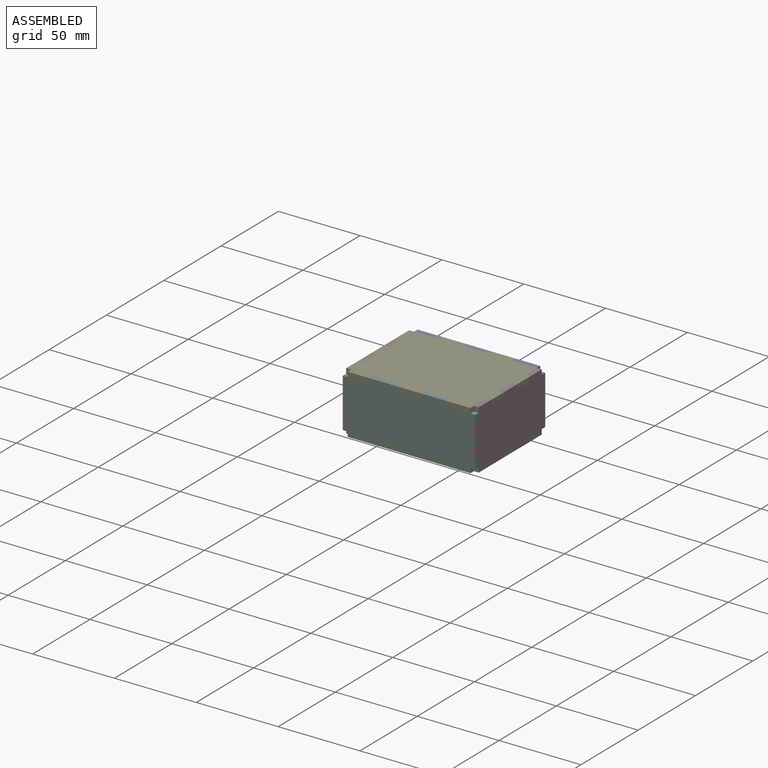
[diagram: assembled view]
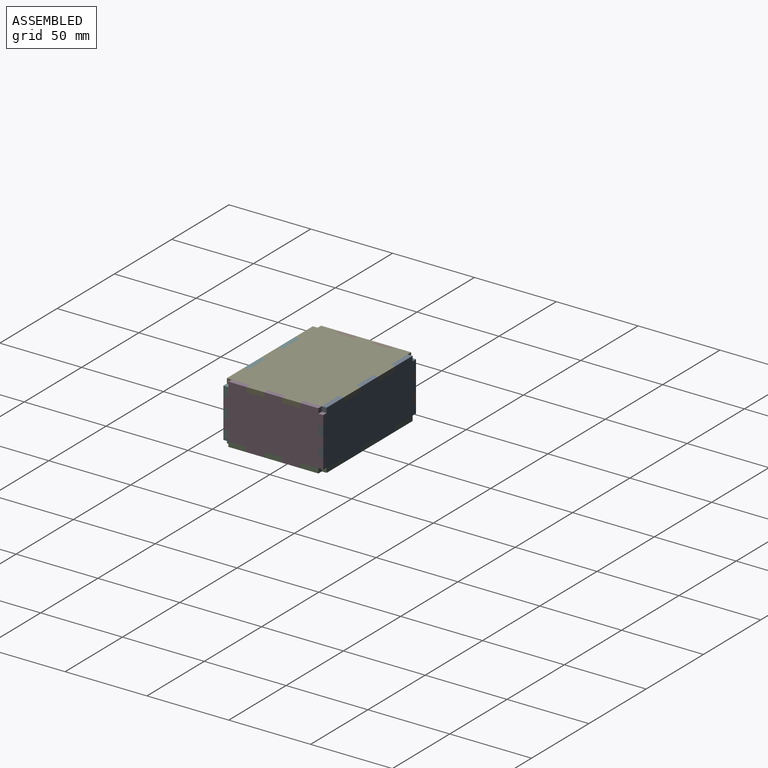
[diagram: assembled view, second angle]
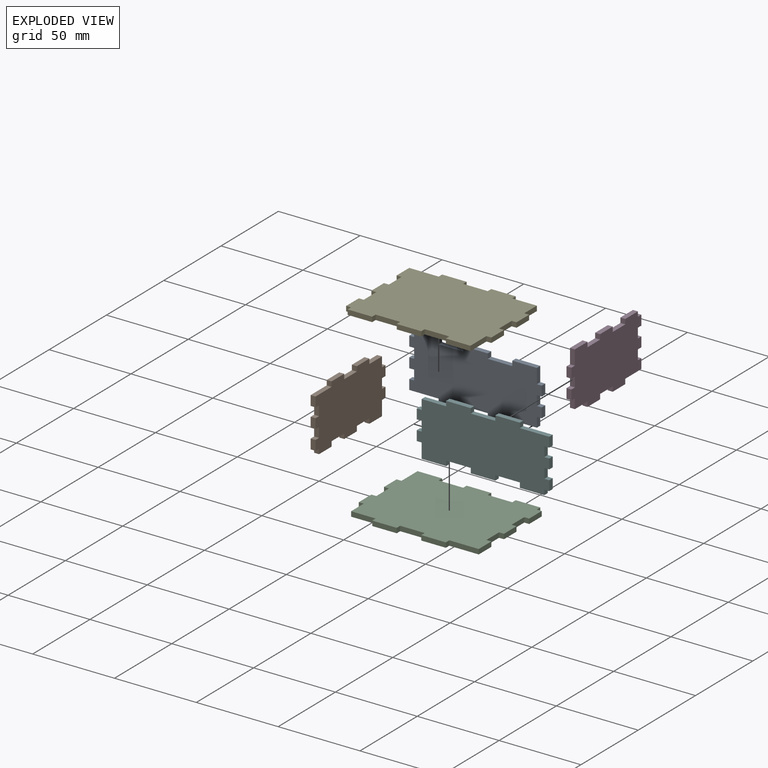
[diagram: exploded view]
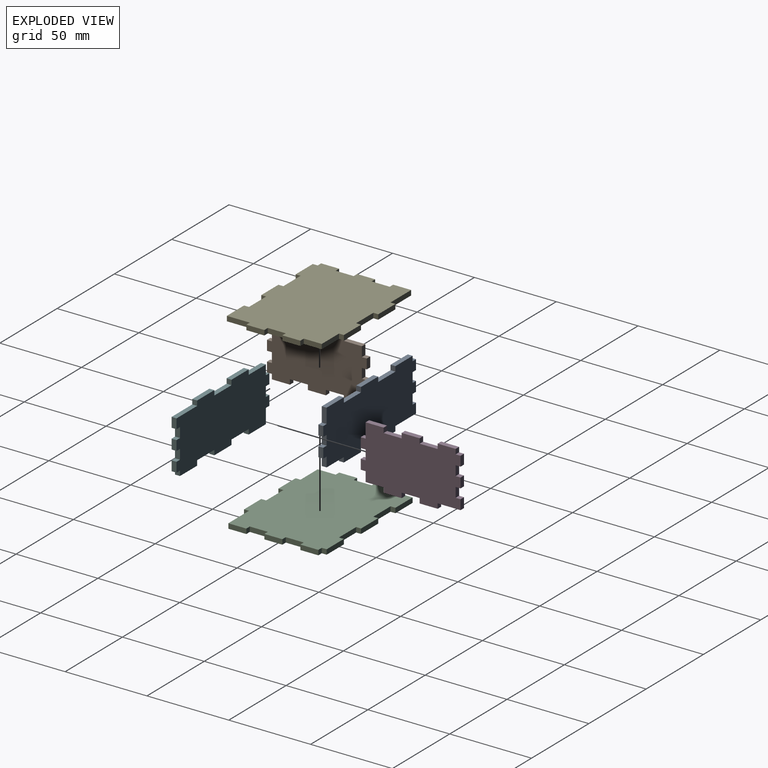
[diagram: exploded view, second angle]
ASSEMBLY  parts=6 mates=4
PART A: 40 faces, bbox 81x3x36 mm
  f0: plane 18x3mm, normal (0,0,1), area 54mm2, adj f1,f37,f38,f39
  f1: plane 6x3mm, normal (1,0,0), area 18mm2, adj f0,f2,f38,f39
  f2: plane 3x3mm, normal (0,0,-1), area 9mm2, adj f1,f3,f38,f39
  f3: plane 6x3mm, normal (1,0,0), area 18mm2, adj f2,f4,f38,f39
  f4: plane 3x3mm, normal (0,0,1), area 9mm2, adj f3,f5,f38,f39
  f5: plane 6x3mm, normal (1,0,0), area 18mm2, adj f4,f6,f38,f39
  f6: plane 3x3mm, normal (0,0,-1), area 9mm2, adj f5,f7,f38,f39
  f7: plane 6x3mm, normal (1,0,0), area 18mm2, adj f6,f8,f38,f39
  f8: plane 3x3mm, normal (0,0,1), area 9mm2, adj f7,f9,f38,f39
  f9: plane 6x3mm, normal (1,0,0), area 18mm2, adj f8,f10,f38,f39
  f10: plane 3x3mm, normal (0,0,-1), area 9mm2, adj f9,f11,f38,f39
  f11: plane 3x3mm, normal (1,0,0), area 9mm2, adj f10,f12,f38,f39
  f12: plane 15x3mm, normal (0,0,-1), area 45mm2, adj f11,f13,f38,f39
  f13: plane 3x3mm, normal (-1,0,0), area 9mm2, adj f12,f14,f38,f39
  f14: plane 15x3mm, normal (0,0,-1), area 45mm2, adj f13,f15,f38,f39
  f15: plane 3x3mm, normal (1,0,0), area 9mm2, adj f14,f16,f38,f39
  f16: plane 15x3mm, normal (0,0,-1), area 45mm2, adj f15,f17,f38,f39
  f17: plane 3x3mm, normal (-1,0,0), area 9mm2, adj f16,f18,f38,f39
  f18: plane 15x3mm, normal (0,0,-1), area 45mm2, adj f17,f19,f38,f39
  f19: plane 3x3mm, normal (1,0,0), area 9mm2, adj f18,f20,f38,f39
  f20: plane 15x3mm, normal (0,0,-1), area 45mm2, adj f19,f21,f38,f39
  f21: plane 9x3mm, normal (-1,0,0), area 27mm2, adj f20,f22,f38,f39
  f22: plane 3x3mm, normal (0,0,-1), area 9mm2, adj f21,f23,f38,f39
  f23: plane 6x3mm, normal (-1,0,0), area 18mm2, adj f22,f24,f38,f39
  f24: plane 3x3mm, normal (0,0,1), area 9mm2, adj f23,f25,f38,f39
  f25: plane 6x3mm, normal (-1,0,0), area 18mm2, adj f24,f26,f38,f39
  f26: plane 3x3mm, normal (0,0,-1), area 9mm2, adj f25,f27,f38,f39
  f27: plane 6x3mm, normal (-1,0,0), area 18mm2, adj f26,f28,f38,f39
  f28: plane 3x3mm, normal (0,0,1), area 9mm2, adj f27,f29,f38,f39
  f29: plane 6x3mm, normal (-1,0,0), area 18mm2, adj f28,f30,f38,f39
  f30: plane 15x3mm, normal (0,0,1), area 45mm2, adj f29,f31,f38,f39
  f31: plane 3x3mm, normal (-1,0,0), area 9mm2, adj f30,f32,f38,f39
  f32: plane 15x3mm, normal (0,0,1), area 45mm2, adj f31,f33,f38,f39
  f33: plane 3x3mm, normal (1,0,0), area 9mm2, adj f32,f34,f38,f39
  f34: plane 15x3mm, normal (0,0,1), area 45mm2, adj f33,f35,f38,f39
  f35: plane 3x3mm, normal (-1,0,0), area 9mm2, adj f34,f36,f38,f39
  f36: plane 15x3mm, normal (0,0,1), area 45mm2, adj f35,f37,f38,f39
  f37: plane 3x3mm, normal (1,0,0), area 9mm2, adj f0,f36,f38,f39
  f38: plane 81x36mm, normal (0,-1,0), area 2565mm2, adj f0,f1,f2,f3,f4,f5,f6,f7
  f39: plane 81x36mm, normal (0,1,0), area 2565mm2, adj f0,f1,f2,f3,f4,f5,f6,f7
PART B: 40 faces, bbox 3x61x36 mm
  f0: plane 3x3mm, normal (0,1,0), area 9mm2, adj f1,f37,f38,f39
  f1: plane 11x3mm, normal (0,0,1), area 33mm2, adj f0,f2,f38,f39
  f2: plane 3x3mm, normal (0,-1,0), area 9mm2, adj f1,f3,f38,f39
  f3: plane 11x3mm, normal (0,0,1), area 33mm2, adj f2,f4,f38,f39
  f4: plane 3x3mm, normal (0,1,0), area 9mm2, adj f3,f5,f38,f39
  f5: plane 11x3mm, normal (0,0,1), area 33mm2, adj f4,f6,f38,f39
  f6: plane 3x3mm, normal (0,-1,0), area 9mm2, adj f5,f7,f38,f39
  f7: plane 14x3mm, normal (0,0,1), area 42mm2, adj f6,f8,f38,f39
  f8: plane 6x3mm, normal (0,-1,0), area 18mm2, adj f7,f9,f38,f39
  f9: plane 3x3mm, normal (0,0,-1), area 9mm2, adj f8,f10,f38,f39
  f10: plane 6x3mm, normal (0,-1,0), area 18mm2, adj f9,f11,f38,f39
  f11: plane 3x3mm, normal (0,0,1), area 9mm2, adj f10,f12,f38,f39
  f12: plane 6x3mm, normal (0,-1,0), area 18mm2, adj f11,f13,f38,f39
  f13: plane 3x3mm, normal (0,0,-1), area 9mm2, adj f12,f14,f38,f39
  f14: plane 6x3mm, normal (0,-1,0), area 18mm2, adj f13,f15,f38,f39
  f15: plane 3x3mm, normal (0,0,1), area 9mm2, adj f14,f16,f38,f39
  f16: plane 6x3mm, normal (0,-1,0), area 18mm2, adj f15,f17,f38,f39
  f17: plane 3x3mm, normal (0,0,-1), area 9mm2, adj f16,f18,f38,f39
  f18: plane 3x3mm, normal (0,-1,0), area 9mm2, adj f17,f19,f38,f39
  f19: plane 11x3mm, normal (0,0,-1), area 33mm2, adj f18,f20,f38,f39
  f20: plane 3x3mm, normal (0,1,0), area 9mm2, adj f19,f21,f38,f39
  f21: plane 11x3mm, normal (0,0,-1), area 33mm2, adj f20,f22,f38,f39
  f22: plane 3x3mm, normal (0,-1,0), area 9mm2, adj f21,f23,f38,f39
  f23: plane 11x3mm, normal (0,0,-1), area 33mm2, adj f22,f24,f38,f39
  f24: plane 3x3mm, normal (0,1,0), area 9mm2, adj f23,f25,f38,f39
  f25: plane 11x3mm, normal (0,0,-1), area 33mm2, adj f24,f26,f38,f39
  f26: plane 3x3mm, normal (0,-1,0), area 9mm2, adj f25,f27,f38,f39
  f27: plane 11x3mm, normal (0,0,-1), area 33mm2, adj f26,f28,f38,f39
  f28: plane 9x3mm, normal (0,1,0), area 27mm2, adj f27,f29,f38,f39
  f29: plane 3x3mm, normal (0,0,-1), area 9mm2, adj f28,f30,f38,f39
  f30: plane 6x3mm, normal (0,1,0), area 18mm2, adj f29,f31,f38,f39
  f31: plane 3x3mm, normal (0,0,1), area 9mm2, adj f30,f32,f38,f39
  f32: plane 6x3mm, normal (0,1,0), area 18mm2, adj f31,f33,f38,f39
  f33: plane 3x3mm, normal (0,0,-1), area 9mm2, adj f32,f34,f38,f39
  f34: plane 6x3mm, normal (0,1,0), area 18mm2, adj f33,f35,f38,f39
  f35: plane 3x3mm, normal (0,0,1), area 9mm2, adj f34,f36,f38,f39
  f36: plane 6x3mm, normal (0,1,0), area 18mm2, adj f35,f37,f38,f39
  f37: plane 11x3mm, normal (0,0,1), area 33mm2, adj f0,f36,f38,f39
  f38: plane 61x36mm, normal (-1,0,0), area 1905mm2, adj f0,f1,f2,f3,f4,f5,f6,f7
  f39: plane 61x36mm, normal (1,0,0), area 1905mm2, adj f0,f1,f2,f3,f4,f5,f6,f7
PART C: 40 faces, bbox 81x61x3 mm
  f0: plane 14x3mm, normal (-1,0,0), area 42mm2, adj f1,f37,f38,f39
  f1: plane 3x3mm, normal (0,1,0), area 9mm2, adj f0,f2,f38,f39
  f2: plane 11x3mm, normal (-1,0,0), area 33mm2, adj f1,f3,f38,f39
  f3: plane 3x3mm, normal (0,-1,0), area 9mm2, adj f2,f4,f38,f39
  f4: plane 11x3mm, normal (-1,0,0), area 33mm2, adj f3,f5,f38,f39
  f5: plane 3x3mm, normal (0,1,0), area 9mm2, adj f4,f6,f38,f39
  f6: plane 11x3mm, normal (-1,0,0), area 33mm2, adj f5,f7,f38,f39
  f7: plane 3x3mm, normal (0,-1,0), area 9mm2, adj f6,f8,f38,f39
  f8: plane 11x3mm, normal (-1,0,0), area 33mm2, adj f7,f9,f38,f39
  f9: plane 15x3mm, normal (0,-1,0), area 45mm2, adj f8,f10,f38,f39
  f10: plane 3x3mm, normal (-1,0,0), area 9mm2, adj f9,f11,f38,f39
  f11: plane 15x3mm, normal (0,-1,0), area 45mm2, adj f10,f12,f38,f39
  f12: plane 3x3mm, normal (1,0,0), area 9mm2, adj f11,f13,f38,f39
  f13: plane 15x3mm, normal (0,-1,0), area 45mm2, adj f12,f14,f38,f39
  f14: plane 3x3mm, normal (-1,0,0), area 9mm2, adj f13,f15,f38,f39
  f15: plane 15x3mm, normal (0,-1,0), area 45mm2, adj f14,f16,f38,f39
  f16: plane 3x3mm, normal (1,0,0), area 9mm2, adj f15,f17,f38,f39
  f17: plane 18x3mm, normal (0,-1,0), area 54mm2, adj f16,f18,f38,f39
  f18: plane 11x3mm, normal (1,0,0), area 33mm2, adj f17,f19,f38,f39
  f19: plane 3x3mm, normal (0,1,0), area 9mm2, adj f18,f20,f38,f39
  f20: plane 11x3mm, normal (1,0,0), area 33mm2, adj f19,f21,f38,f39
  f21: plane 3x3mm, normal (0,-1,0), area 9mm2, adj f20,f22,f38,f39
  f22: plane 11x3mm, normal (1,0,0), area 33mm2, adj f21,f23,f38,f39
  f23: plane 3x3mm, normal (0,1,0), area 9mm2, adj f22,f24,f38,f39
  f24: plane 11x3mm, normal (1,0,0), area 33mm2, adj f23,f25,f38,f39
  f25: plane 3x3mm, normal (0,-1,0), area 9mm2, adj f24,f26,f38,f39
  f26: plane 11x3mm, normal (1,0,0), area 33mm2, adj f25,f27,f38,f39
  f27: plane 3x3mm, normal (0,1,0), area 9mm2, adj f26,f28,f38,f39
  f28: plane 3x3mm, normal (1,0,0), area 9mm2, adj f27,f29,f38,f39
  f29: plane 15x3mm, normal (0,1,0), area 45mm2, adj f28,f30,f38,f39
  f30: plane 3x3mm, normal (-1,0,0), area 9mm2, adj f29,f31,f38,f39
  f31: plane 15x3mm, normal (0,1,0), area 45mm2, adj f30,f32,f38,f39
  f32: plane 3x3mm, normal (1,0,0), area 9mm2, adj f31,f33,f38,f39
  f33: plane 15x3mm, normal (0,1,0), area 45mm2, adj f32,f34,f38,f39
  f34: plane 3x3mm, normal (-1,0,0), area 9mm2, adj f33,f35,f38,f39
  f35: plane 15x3mm, normal (0,1,0), area 45mm2, adj f34,f36,f38,f39
  f36: plane 3x3mm, normal (1,0,0), area 9mm2, adj f35,f37,f38,f39
  f37: plane 15x3mm, normal (0,1,0), area 45mm2, adj f0,f36,f38,f39
  f38: plane 81x61mm, normal (0,0,1), area 4515mm2, adj f0,f1,f2,f3,f4,f5,f6,f7
  f39: plane 81x61mm, normal (0,0,-1), area 4515mm2, adj f0,f1,f2,f3,f4,f5,f6,f7
PART D: same geometry as B
PART E: same geometry as C
PART F: same geometry as A
PLACE A rot(axis=(0,-1,0),180deg) t=(-23.21,49.31,-84.86)mm
PLACE B t=(-101.21,49.31,-54.86)mm
PLACE C t=(-23.21,49.31,-87.86)mm
PLACE D rot(axis=(1,0,0),180deg) t=(-23.21,49.31,-84.86)mm
PLACE E rot(axis=(0,0,-1),180deg) t=(-23.21,49.31,-54.86)mm
PLACE F t=(-23.21,-8.69,-54.86)mm
MATE fastened A.f13 <-> E.f16  axis (1,0,0) through (-45.71,78.31,-53.36)mm
MATE fastened B.f26 <-> C.f1  axis (0,-1,0) through (-62.21,65.81,-86.36)mm
MATE fastened D.f2 <-> C.f21  axis (0,1,0) through (15.79,43.81,-86.36)mm
MATE fastened C.f12 <-> F.f17  axis (1,0,0) through (-30.71,20.31,-86.36)mm
